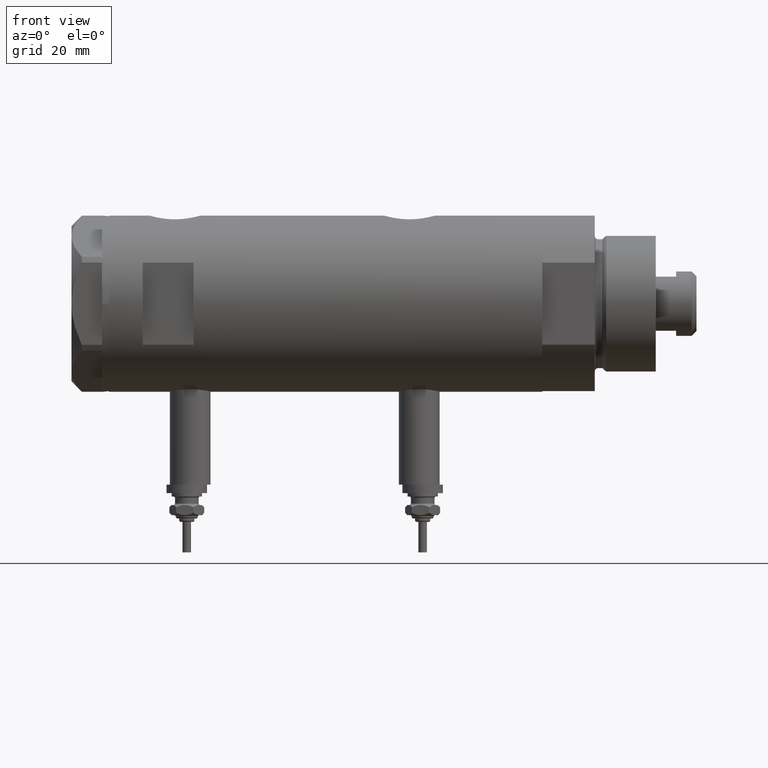
[diagram: clean part render]
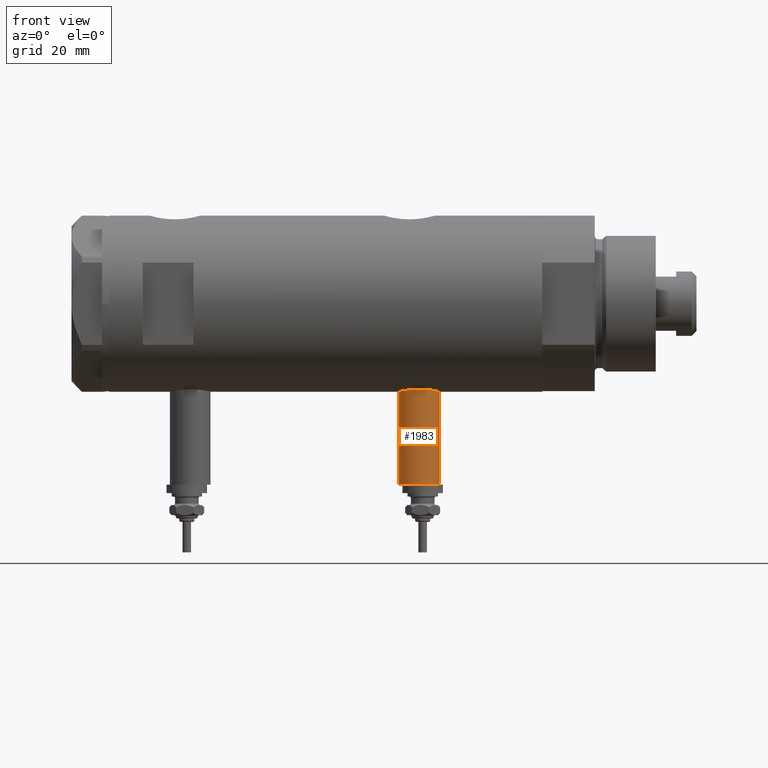
[diagram: same view with one face highlighted and labeled with its STEP entity id]
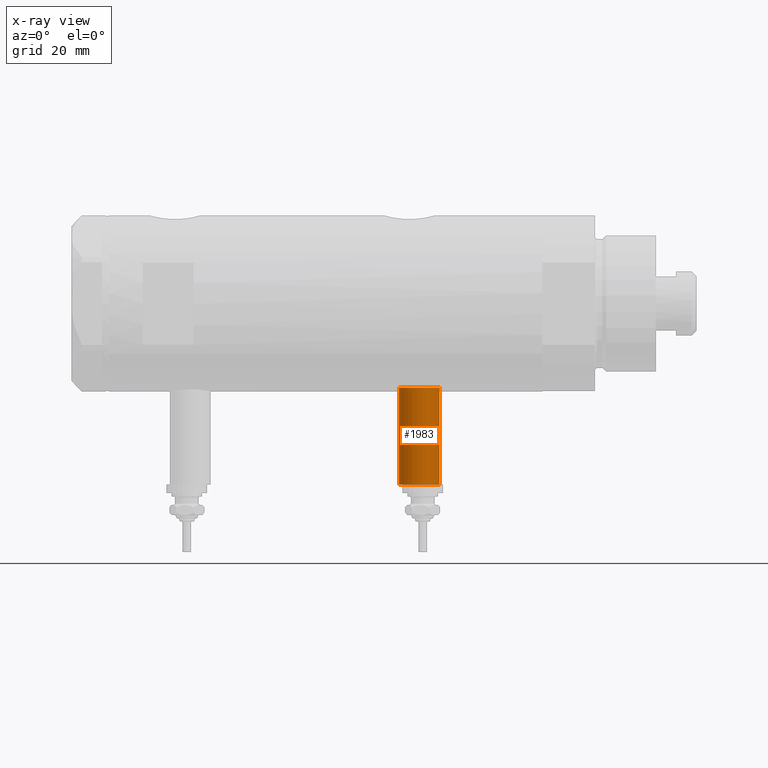
[diagram: x-ray of the same camera — body ghosted, the highlighted face saturated]
A machine part, front view. The second image highlights one B-rep face of the part: STEP entity #1983.
The next image is the same camera in x-ray: the body ghosted, the highlighted face saturated — about 0% of this face is hidden behind the body in this view.
In plain terms, the highlighted cylindrical surface (edge-blend (fillet) strip) has radius 6 mm, axis along (0, 0, 1).
Its self-contained STEP definition (entity closure, byte-faithful):
#13 = EDGE_CURVE ( 'NONE', #6048, #915, #172, .T. ) ;
#151 = LINE ( 'NONE', #751, #4362 ) ;
#168 = ORIENTED_EDGE ( 'NONE', *, *, #13, .T. ) ;
#172 = LINE ( 'NONE', #1184, #5558 ) ;
#234 = CYLINDRICAL_SURFACE ( 'NONE', #2201, 6.000000000000005329 ) ;
#707 = CIRCLE ( 'NONE', #4271, 6.000000000000001776 ) ;
#751 = CARTESIAN_POINT ( 'NONE',  ( -53.40000000000000568, 7.347880794884122694E-16, -21.65000000000000568 ) ) ;
#915 = VERTEX_POINT ( 'NONE', #4353 ) ;
#967 = CARTESIAN_POINT ( 'NONE',  ( -24.80000000000000426, 0.000000000000000000, -27.65000000000000924 ) ) ;
#1004 = ORIENTED_EDGE ( 'NONE', *, *, #4317, .F. ) ;
#1184 = CARTESIAN_POINT ( 'NONE',  ( -53.40000000000000568, 0.000000000000000000, -33.65000000000001279 ) ) ;
#1605 = CARTESIAN_POINT ( 'NONE',  ( -24.80000000000000426, 7.347880794884123680E-16, -21.65000000000000213 ) ) ;
#1691 = CIRCLE ( 'NONE', #3329, 6.000000000000001776 ) ;
#1884 = EDGE_CURVE ( 'NONE', #915, #5429, #1691, .T. ) ;
#1983 = ADVANCED_FACE ( 'NONE', ( #4450 ), #234, .T. ) ;
#2112 = EDGE_LOOP ( 'NONE', ( #3939, #1004, #168, #4951 ) ) ;
#2172 = DIRECTION ( 'NONE',  ( 1.000000000000000000, -0.000000000000000000, -0.000000000000000000 ) ) ;
#2201 = AXIS2_PLACEMENT_3D ( 'NONE', #5450, #2172, #2946 ) ;
#2262 = CARTESIAN_POINT ( 'NONE',  ( -53.40000000000000568, 0.000000000000000000, -33.65000000000001279 ) ) ;
#2281 = VERTEX_POINT ( 'NONE', #4338 ) ;
#2643 = DIRECTION ( 'NONE',  ( -1.000000000000000000, 0.000000000000000000, 0.000000000000000000 ) ) ;
#2946 = DIRECTION ( 'NONE',  ( 0.000000000000000000, 0.000000000000000000, -1.000000000000000000 ) ) ;
#3173 = DIRECTION ( 'NONE',  ( 1.000000000000000000, -0.000000000000000000, -0.000000000000000000 ) ) ;
#3329 = AXIS2_PLACEMENT_3D ( 'NONE', #967, #2643, #3487 ) ;
#3487 = DIRECTION ( 'NONE',  ( 0.000000000000000000, 0.000000000000000000, 1.000000000000000000 ) ) ;
#3939 = ORIENTED_EDGE ( 'NONE', *, *, #5005, .F. ) ;
#3993 = DIRECTION ( 'NONE',  ( 1.000000000000000000, -0.000000000000000000, -0.000000000000000000 ) ) ;
#4271 = AXIS2_PLACEMENT_3D ( 'NONE', #5635, #6157, #5093 ) ;
#4317 = EDGE_CURVE ( 'NONE', #6048, #2281, #707, .T. ) ;
#4338 = CARTESIAN_POINT ( 'NONE',  ( -53.40000000000000568, 7.347880794884123680E-16, -21.65000000000000213 ) ) ;
#4353 = CARTESIAN_POINT ( 'NONE',  ( -24.80000000000000426, 0.000000000000000000, -33.65000000000001279 ) ) ;
#4362 = VECTOR ( 'NONE', #3173, 1000.000000000000000 ) ;
#4450 = FACE_OUTER_BOUND ( 'NONE', #2112, .T. ) ;
#4951 = ORIENTED_EDGE ( 'NONE', *, *, #1884, .T. ) ;
#5005 = EDGE_CURVE ( 'NONE', #2281, #5429, #151, .T. ) ;
#5093 = DIRECTION ( 'NONE',  ( 0.000000000000000000, 0.000000000000000000, 1.000000000000000000 ) ) ;
#5429 = VERTEX_POINT ( 'NONE', #1605 ) ;
#5450 = CARTESIAN_POINT ( 'NONE',  ( -53.40000000000000568, 0.000000000000000000, -27.65000000000000924 ) ) ;
#5558 = VECTOR ( 'NONE', #3993, 1000.000000000000000 ) ;
#5635 = CARTESIAN_POINT ( 'NONE',  ( -53.40000000000000568, 0.000000000000000000, -27.65000000000000924 ) ) ;
#6048 = VERTEX_POINT ( 'NONE', #2262 ) ;
#6157 = DIRECTION ( 'NONE',  ( -1.000000000000000000, 0.000000000000000000, 0.000000000000000000 ) ) ;